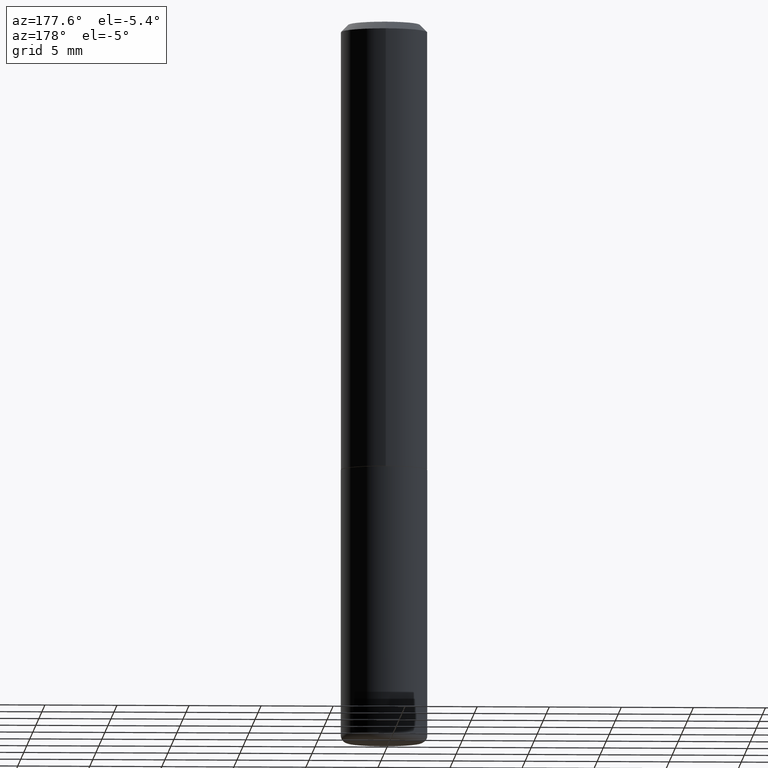
[diagram: clean part render]
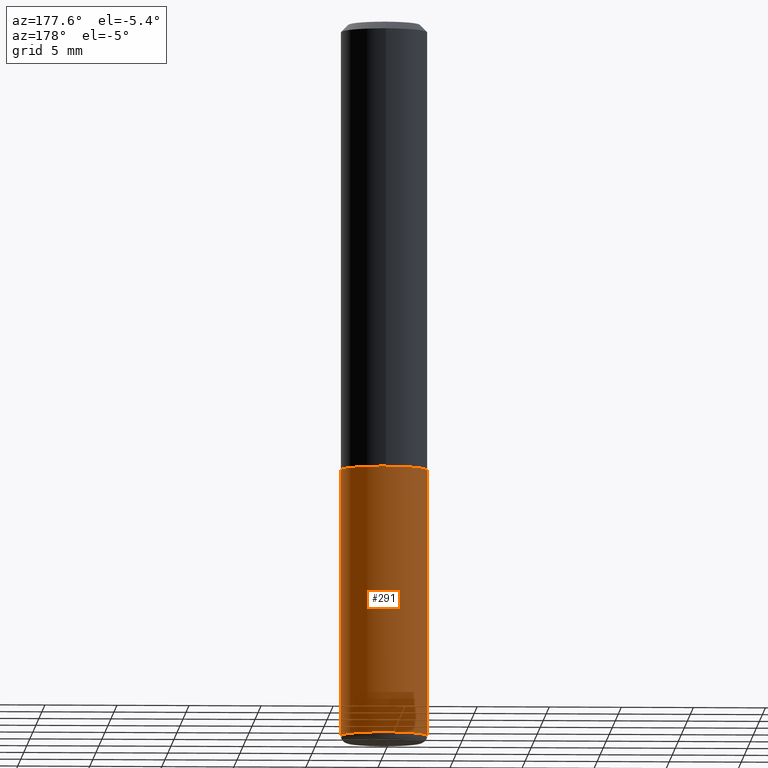
[diagram: same view with one face highlighted and labeled with its STEP entity id]
A machine part, auxiliary view. The second image highlights one B-rep face of the part: STEP entity #291.
In plain terms, the highlighted cylindrical surface (partial cylindrical patch) has radius 2.9997 mm, axis along (-0, 0, 1).
Its self-contained STEP definition (entity closure, byte-faithful):
#25 = VERTEX_POINT ( 'NONE', #144 ) ;
#32 = CYLINDRICAL_SURFACE ( 'NONE', #162, 0.1180999999999999966 ) ;
#49 = EDGE_CURVE ( 'NONE', #102, #379, #311, .T. ) ;
#65 = AXIS2_PLACEMENT_3D ( 'NONE', #72, #332, #181 ) ;
#70 = DIRECTION ( 'NONE',  ( -2.445468806185136597E-29, 3.491481338843145583E-15, 1.000000000000000000 ) ) ;
#72 = CARTESIAN_POINT ( 'NONE',  ( 2.984694677948959472E-29, -4.261352974058059028E-15, -1.220499999999999918 ) ) ;
#78 = EDGE_CURVE ( 'NONE', #25, #379, #116, .T. ) ;
#85 = CARTESIAN_POINT ( 'NONE',  ( -0.1180999999999999966, -4.693624932665111972E-15, -1.220499999999999918 ) ) ;
#102 = VERTEX_POINT ( 'NONE', #212 ) ;
#103 = CARTESIAN_POINT ( 'NONE',  ( 0.1180999999999999966, -8.246878922347480654E-16, 5.758764772215000440E-30 ) ) ;
#110 = VERTEX_POINT ( 'NONE', #247 ) ;
#113 = CARTESIAN_POINT ( 'NONE',  ( -0.1180999999999999966, 8.391509709326782957E-16, -5.809262341591043784E-30 ) ) ;
#116 = LINE ( 'NONE', #113, #408 ) ;
#144 = CARTESIAN_POINT ( 'NONE',  ( -0.1180999999999999411, -5.965047862204843903E-15, -1.948800000000000088 ) ) ;
#146 = VECTOR ( 'NONE', #323, 39.37007874015748143 ) ;
#152 = CIRCLE ( 'NONE', #268, 0.1180999999999999966 ) ;
#162 = AXIS2_PLACEMENT_3D ( 'NONE', #175, #266, #260 ) ;
#168 = ORIENTED_EDGE ( 'NONE', *, *, #49, .F. ) ;
#175 = CARTESIAN_POINT ( 'NONE',  ( 0.000000000000000000, 0.000000000000000000, 0.000000000000000000 ) ) ;
#179 = FACE_OUTER_BOUND ( 'NONE', #333, .T. ) ;
#181 = DIRECTION ( 'NONE',  ( 1.000000000000000000, -6.982962677686265133E-15, 0.000000000000000000 ) ) ;
#202 = LINE ( 'NONE', #103, #146 ) ;
#212 = CARTESIAN_POINT ( 'NONE',  ( 0.1180999999999999966, -5.086040866292807290E-15, -1.220499999999999918 ) ) ;
#230 = CARTESIAN_POINT ( 'NONE',  ( 4.765729609493594537E-29, -6.804198833137522100E-15, -1.948800000000000088 ) ) ;
#247 = CARTESIAN_POINT ( 'NONE',  ( 0.1180999999999999411, -7.628886725372270363E-15, -1.948800000000000088 ) ) ;
#260 = DIRECTION ( 'NONE',  ( 1.000000000000000000, -6.982962677686266711E-15, 4.876176775795936353E-29 ) ) ;
#266 = DIRECTION ( 'NONE',  ( -2.445468806185136597E-29, 3.491481338843145583E-15, 1.000000000000000000 ) ) ;
#268 = AXIS2_PLACEMENT_3D ( 'NONE', #230, #70, #389 ) ;
#279 = ORIENTED_EDGE ( 'NONE', *, *, #329, .T. ) ;
#291 = ADVANCED_FACE ( 'NONE', ( #179 ), #32, .T. ) ;
#295 = ORIENTED_EDGE ( 'NONE', *, *, #78, .T. ) ;
#311 = CIRCLE ( 'NONE', #65, 0.1180999999999999966 ) ;
#323 = DIRECTION ( 'NONE',  ( -2.445468806185136877E-29, 3.491481338843145188E-15, 1.000000000000000000 ) ) ;
#329 = EDGE_CURVE ( 'NONE', #110, #25, #152, .T. ) ;
#332 = DIRECTION ( 'NONE',  ( -2.445468806185136597E-29, 3.491481338843145583E-15, 1.000000000000000000 ) ) ;
#333 = EDGE_LOOP ( 'NONE', ( #279, #295, #168, #388 ) ) ;
#342 = DIRECTION ( 'NONE',  ( -2.445468806185136877E-29, 3.491481338843145188E-15, 1.000000000000000000 ) ) ;
#354 = EDGE_CURVE ( 'NONE', #110, #102, #202, .T. ) ;
#379 = VERTEX_POINT ( 'NONE', #85 ) ;
#388 = ORIENTED_EDGE ( 'NONE', *, *, #354, .F. ) ;
#389 = DIRECTION ( 'NONE',  ( 1.000000000000000000, -6.982962677686265133E-15, 0.000000000000000000 ) ) ;
#408 = VECTOR ( 'NONE', #342, 39.37007874015748143 ) ;